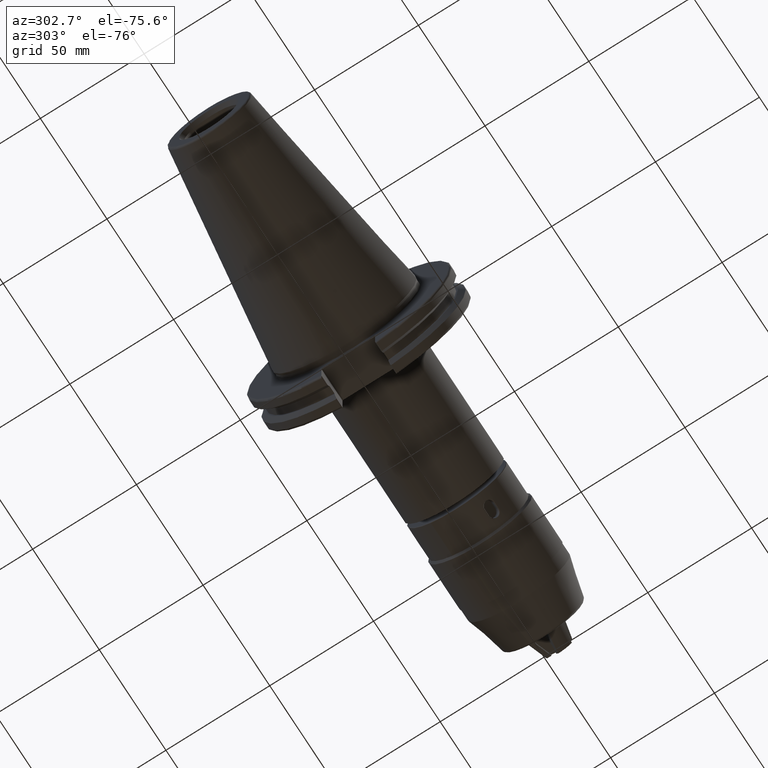
[diagram: clean part render]
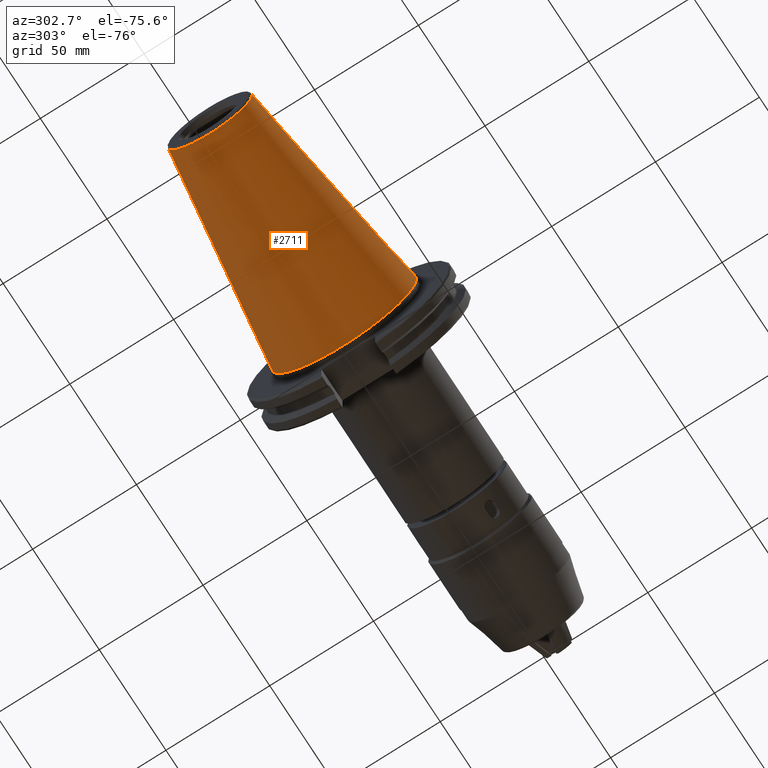
[diagram: same view with one face highlighted and labeled with its STEP entity id]
A machine part, auxiliary view. The second image highlights one B-rep face of the part: STEP entity #2711.
In plain terms, the highlighted conical surface has half-angle 8.297 deg.
Its self-contained STEP definition (entity closure, byte-faithful):
#415=CONICAL_SURFACE('',#3102,27.5166666666666,0.14481249823894);
#559=FACE_OUTER_BOUND('',#718,.T.);
#718=EDGE_LOOP('',(#2101,#2102,#2103,#2104,#2105));
#899=LINE('',#4602,#1096);
#1096=VECTOR('',#3564,27.5166666666666);
#1270=CIRCLE('',#3096,20.233121911427);
#1271=CIRCLE('',#3097,20.233121911427);
#1275=CIRCLE('',#3103,34.925);
#1433=VERTEX_POINT('',#4589);
#1434=VERTEX_POINT('',#4590);
#1437=VERTEX_POINT('',#4600);
#1687=EDGE_CURVE('',#1433,#1434,#1270,.T.);
#1688=EDGE_CURVE('',#1434,#1433,#1271,.T.);
#1692=EDGE_CURVE('',#1437,#1437,#1275,.T.);
#1693=EDGE_CURVE('',#1437,#1434,#899,.T.);
#2101=ORIENTED_EDGE('',*,*,#1692,.F.);
#2102=ORIENTED_EDGE('',*,*,#1693,.T.);
#2103=ORIENTED_EDGE('',*,*,#1687,.F.);
#2104=ORIENTED_EDGE('',*,*,#1688,.F.);
#2105=ORIENTED_EDGE('',*,*,#1693,.F.);
#2711=ADVANCED_FACE('',(#559),#415,.T.);
#3096=AXIS2_PLACEMENT_3D('',#4591,#3548,#3549);
#3097=AXIS2_PLACEMENT_3D('',#4592,#3550,#3551);
#3102=AXIS2_PLACEMENT_3D('',#4599,#3560,#3561);
#3103=AXIS2_PLACEMENT_3D('',#4601,#3562,#3563);
#3548=DIRECTION('center_axis',(-1.,0.,0.));
#3549=DIRECTION('ref_axis',(0.,-1.,3.06161699786838E-17));
#3550=DIRECTION('center_axis',(-1.,0.,0.));
#3551=DIRECTION('ref_axis',(0.,-1.,3.06161699786838E-17));
#3560=DIRECTION('center_axis',(1.,0.,0.));
#3561=DIRECTION('ref_axis',(0.,1.,0.));
#3562=DIRECTION('center_axis',(1.,0.,0.));
#3563=DIRECTION('ref_axis',(0.,0.,-1.));
#3564=DIRECTION('',(-0.989532981063281,0.144306893071729,1.76724974695192E-17));
#4589=CARTESIAN_POINT('',(-100.744306893072,-2.47784279855872E-15,20.233121911427));
#4590=CARTESIAN_POINT('',(-100.744306893072,-20.233121911427,-2.47784279855872E-15));
#4591=CARTESIAN_POINT('Origin',(-100.744306893072,0.,-3.09730349819841E-15));
#4592=CARTESIAN_POINT('Origin',(-100.744306893072,0.,-3.09730349819841E-15));
#4599=CARTESIAN_POINT('Origin',(-50.8,0.,0.));
#4600=CARTESIAN_POINT('',(-8.88178419700125E-15,-34.925,-4.27707894602213E-15));
#4601=CARTESIAN_POINT('Origin',(0.,0.,0.));
#4602=CARTESIAN_POINT('',(-50.8,-27.5166666666666,-3.3698197756538E-15));